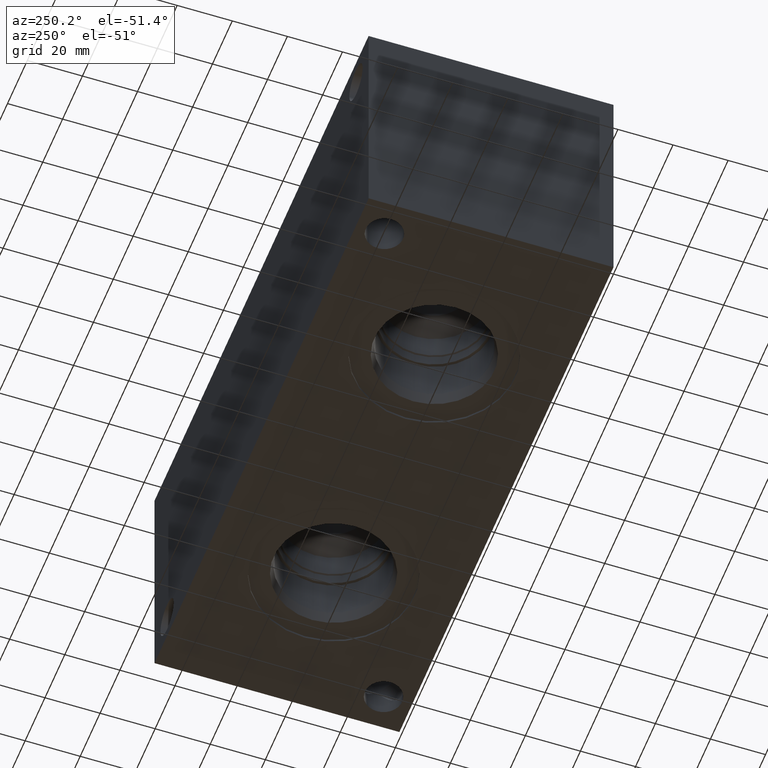
[diagram: clean part render]
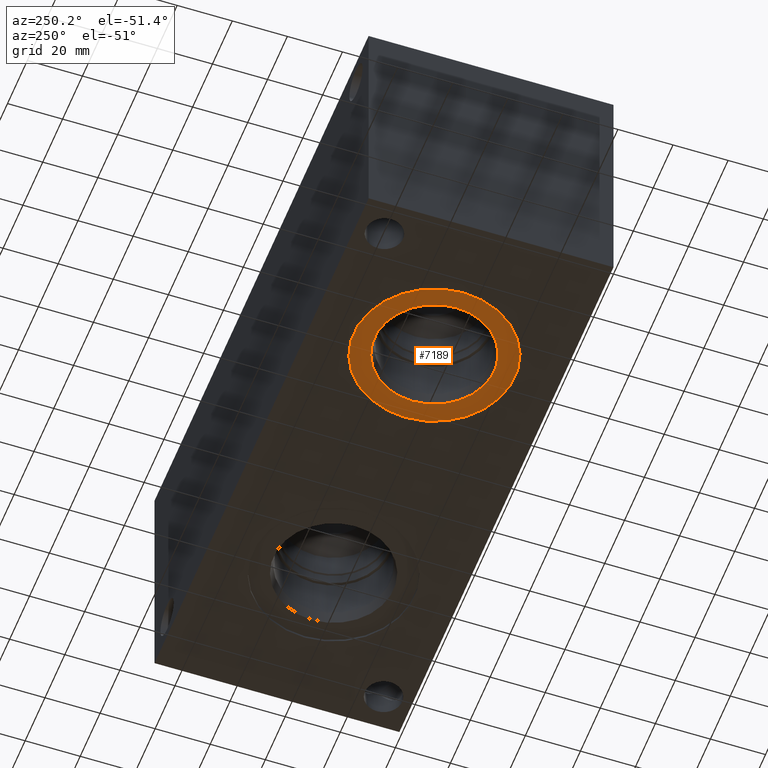
[diagram: same view with one face highlighted and labeled with its STEP entity id]
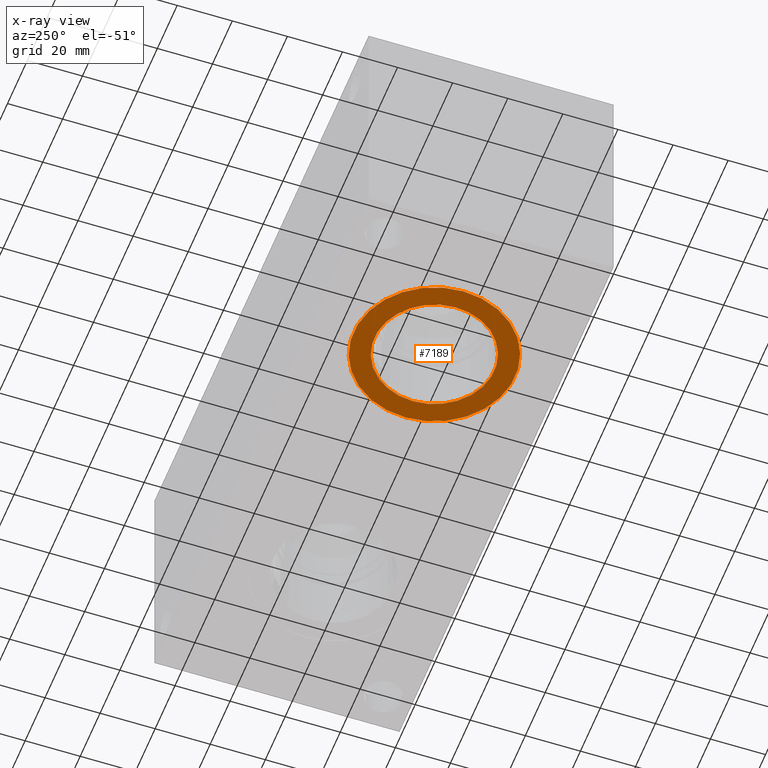
[diagram: x-ray of the same camera — body ghosted, the highlighted face saturated]
A machine part, auxiliary view. The second image highlights one B-rep face of the part: STEP entity #7189.
The next image is the same camera in x-ray: the body ghosted, the highlighted face saturated — about 0% of this face is hidden behind the body in this view.
In plain terms, the highlighted planar face has unit normal (0, 0, -1).
Its self-contained STEP definition (entity closure, byte-faithful):
#107=CIRCLE('',#7514,29.2862);
#108=CIRCLE('',#7515,29.2862);
#109=CIRCLE('',#7516,21.7551);
#183=FACE_BOUND('',#1253,.T.);
#851=FACE_OUTER_BOUND('',#1252,.T.);
#1252=EDGE_LOOP('',(#6163,#6164));
#1253=EDGE_LOOP('',(#6165));
#3298=VERTEX_POINT('',#12254);
#3299=VERTEX_POINT('',#12255);
#3300=VERTEX_POINT('',#12258);
#4268=EDGE_CURVE('',#3298,#3299,#107,.T.);
#4269=EDGE_CURVE('',#3299,#3298,#108,.T.);
#4270=EDGE_CURVE('',#3300,#3300,#109,.T.);
#6163=ORIENTED_EDGE('',*,*,#4268,.T.);
#6164=ORIENTED_EDGE('',*,*,#4269,.T.);
#6165=ORIENTED_EDGE('',*,*,#4270,.F.);
#6541=PLANE('',#7513);
#7189=ADVANCED_FACE('',(#851,#183),#6541,.T.);
#7513=AXIS2_PLACEMENT_3D('',#12253,#8803,#8804);
#7514=AXIS2_PLACEMENT_3D('',#12256,#8805,#8806);
#7515=AXIS2_PLACEMENT_3D('',#12257,#8807,#8808);
#7516=AXIS2_PLACEMENT_3D('',#12259,#8809,#8810);
#8803=DIRECTION('center_axis',(0.,0.,-1.));
#8804=DIRECTION('ref_axis',(1.,0.,0.));
#8805=DIRECTION('center_axis',(0.,0.,-1.));
#8806=DIRECTION('ref_axis',(1.,0.,0.));
#8807=DIRECTION('center_axis',(0.,0.,-1.));
#8808=DIRECTION('ref_axis',(1.,0.,0.));
#8809=DIRECTION('center_axis',(0.,0.,-1.));
#8810=DIRECTION('ref_axis',(1.,0.,0.));
#12253=CARTESIAN_POINT('Origin',(57.15,44.45,0.7874));
#12254=CARTESIAN_POINT('',(86.4362,44.45,0.7874));
#12255=CARTESIAN_POINT('',(27.8638,44.45,0.7874));
#12256=CARTESIAN_POINT('Origin',(57.15,44.45,0.7874));
#12257=CARTESIAN_POINT('Origin',(57.15,44.45,0.7874));
#12258=CARTESIAN_POINT('',(35.3949,44.45,0.7874));
#12259=CARTESIAN_POINT('Origin',(57.15,44.45,0.7874));